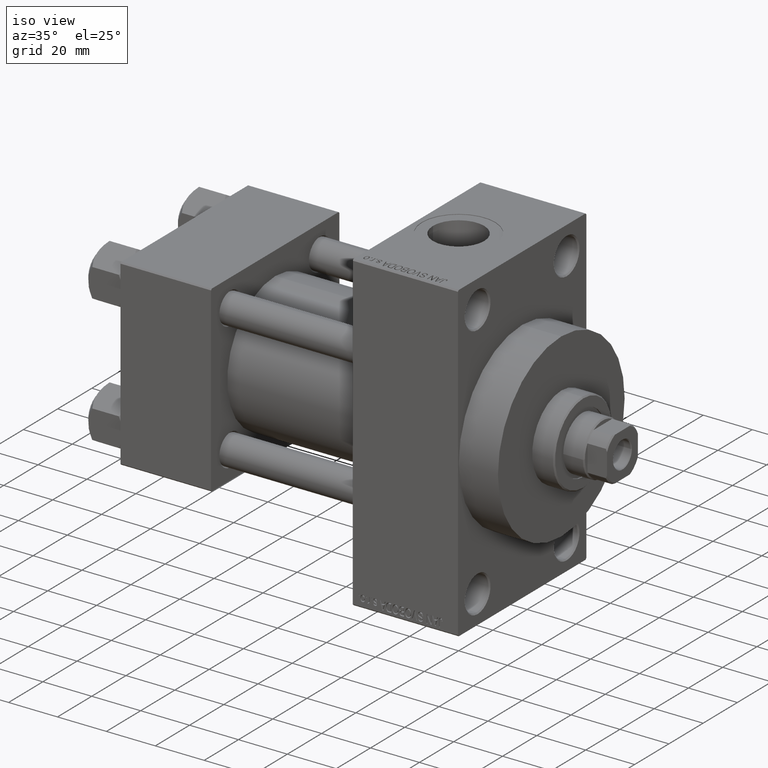
[diagram: clean part render]
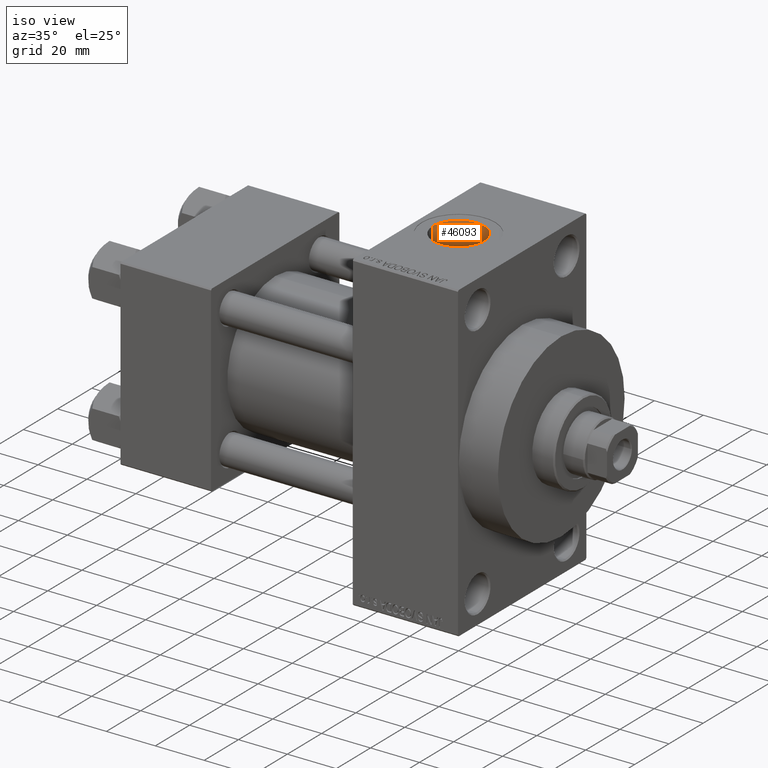
[diagram: same view with one face highlighted and labeled with its STEP entity id]
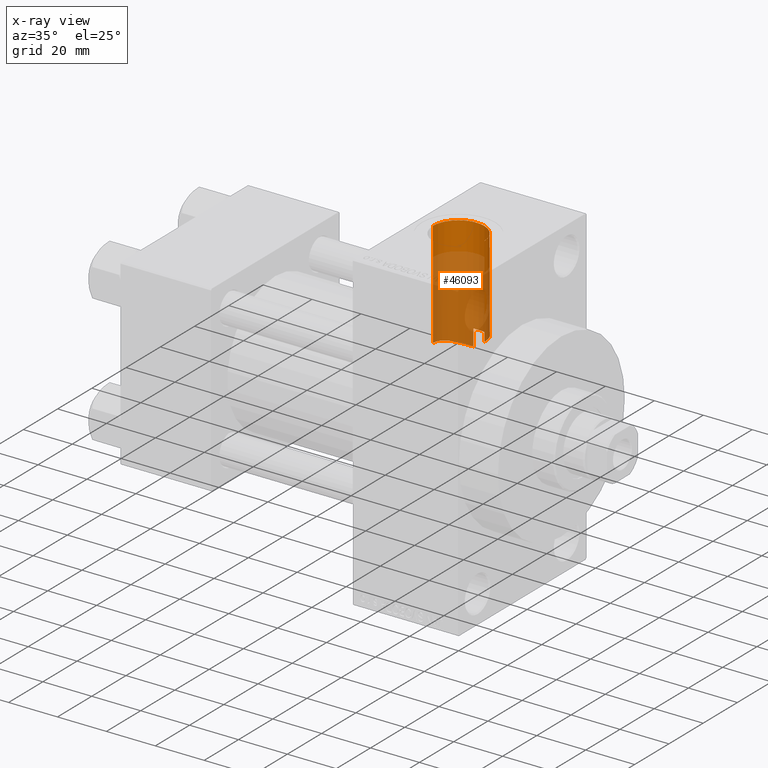
[diagram: x-ray of the same camera — body ghosted, the highlighted face saturated]
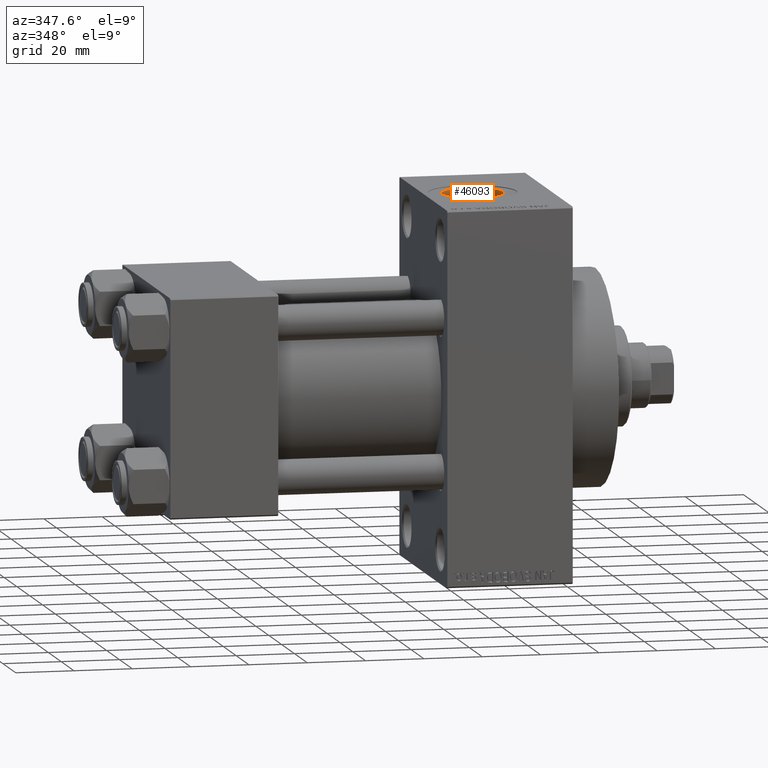
[diagram: same view with one face highlighted and labeled with its STEP entity id]
A machine part, iso view. The second image highlights one B-rep face of the part: STEP entity #46093.
The next image is the same camera in x-ray: the body ghosted, the highlighted face saturated — about 72% of this face is hidden behind the body in this view.
A second angle (auxiliary view) of the same face is appended — the face is thin or edge-on in the first view.
In plain terms, the highlighted cylindrical surface (edge-blend (fillet) strip) has radius 10.48 mm, axis along (0, 0, -1).
Its self-contained STEP definition (entity closure, byte-faithful):
#662 = CARTESIAN_POINT ( 'NONE',  ( 122.4800000000000040, -1.055894908382857498E-14, 86.79999999999995453 ) ) ;
#1130 = LINE ( 'NONE', #662, #12729 ) ;
#1571 = LINE ( 'NONE', #37376, #38355 ) ;
#1682 = CARTESIAN_POINT ( 'NONE',  ( 122.3203974186215106, 1.859062739166803757, 26.43718984002442340 ) ) ;
#2512 = EDGE_CURVE ( 'NONE', #10239, #34695, #34342, .T. ) ;
#2956 = CARTESIAN_POINT ( 'NONE',  ( 105.0528299167331312, 7.871036018965745562, 18.93334913321979585 ) ) ;
#3187 = CARTESIAN_POINT ( 'NONE',  ( 109.4692022797542137, 10.17493502766898494, 17.79682229850193664 ) ) ;
#4796 = CARTESIAN_POINT ( 'NONE',  ( 121.6992295974814340, 3.986558870987728209, 26.20065640115691608 ) ) ;
#4929 = AXIS2_PLACEMENT_3D ( 'NONE', #20710, #14016, #10668 ) ;
#5030 = CARTESIAN_POINT ( 'NONE',  ( 122.0669445693513495, 2.936601299046107449, 26.33916201839659621 ) ) ;
#5728 = CARTESIAN_POINT ( 'NONE',  ( 113.3395490093498239, 10.40067243543118636, 24.37370326712205326 ) ) ;
#6526 = CARTESIAN_POINT ( 'NONE',  ( 103.9742710306879445, 6.746563713616611224, 19.35963802281104762 ) ) ;
#6870 = ORIENTED_EDGE ( 'NONE', *, *, #31338, .F. ) ;
#7004 = EDGE_LOOP ( 'NONE', ( #7594, #6870, #15034, #15441, #11827, #21052 ) ) ;
#7247 = CARTESIAN_POINT ( 'NONE',  ( 101.5199999999999960, 2.510525899711658857E-15, 20.50000000000000000 ) ) ;
#7304 = EDGE_CURVE ( 'NONE', #37208, #37380, #1130, .T. ) ;
#7594 = ORIENTED_EDGE ( 'NONE', *, *, #7304, .F. ) ;
#8616 = CARTESIAN_POINT ( 'NONE',  ( 117.8214836787066560, 8.745726648652290436, 25.01826792439339897 ) ) ;
#9095 = CARTESIAN_POINT ( 'NONE',  ( 120.8701661937233069, 5.628741928601555422, 25.90236100434593780 ) ) ;
#9324 = CARTESIAN_POINT ( 'NONE',  ( 122.3797757294332484, 1.493268271475387765, 26.46049876817950164 ) ) ;
#10239 = VERTEX_POINT ( 'NONE', #25281 ) ;
#10331 = CARTESIAN_POINT ( 'NONE',  ( 107.6756880578672479, 9.566914324853396323, 18.13372263328941969 ) ) ;
#10580 = CARTESIAN_POINT ( 'NONE',  ( 103.7748447540609931, 6.501949221870917839, 19.44336272688398992 ) ) ;
#10668 = DIRECTION ( 'NONE',  ( 1.000000000000000000, 0.000000000000000000, 0.000000000000000000 ) ) ;
#11754 = CARTESIAN_POINT ( 'NONE',  ( 110.7400000000000375, 10.40398000767013365, 17.66372554134603234 ) ) ;
#11827 = ORIENTED_EDGE ( 'NONE', *, *, #23077, .F. ) ;
#12729 = VECTOR ( 'NONE', #19272, 1000.000000000000000 ) ;
#13327 = CIRCLE ( 'NONE', #4929, 10.48000000000000398 ) ;
#13920 = CARTESIAN_POINT ( 'NONE',  ( 106.0406083823525449, 8.626389767625555649, 18.59760954222976181 ) ) ;
#14016 = DIRECTION ( 'NONE',  ( -0.000000000000000000, -0.000000000000000000, -1.000000000000000000 ) ) ;
#15034 = ORIENTED_EDGE ( 'NONE', *, *, #26804, .T. ) ;
#15200 = DIRECTION ( 'NONE',  ( -1.000000000000000000, 0.000000000000000000, 0.000000000000000000 ) ) ;
#15405 = CARTESIAN_POINT ( 'NONE',  ( 122.4800000000000040, -1.055894908382857498E-14, 63.79999999999996874 ) ) ;
#15441 = ORIENTED_EDGE ( 'NONE', *, *, #2512, .T. ) ;
#16118 = DIRECTION ( 'NONE',  ( 0.000000000000000000, 0.000000000000000000, -1.000000000000000000 ) ) ;
#16234 = CARTESIAN_POINT ( 'NONE',  ( 114.4441749543285738, 10.19789382658400179, 24.45934298840090193 ) ) ;
#16576 = DIRECTION ( 'NONE',  ( 0.000000000000000000, 0.000000000000000000, -1.000000000000000000 ) ) ;
#16803 = LINE ( 'NONE', #35177, #34501 ) ;
#17730 = CARTESIAN_POINT ( 'NONE',  ( 101.8172526941615104, 2.560154069184302994, 20.34938652026761119 ) ) ;
#18062 = CYLINDRICAL_SURFACE ( 'NONE', #42455, 10.48000000000000398 ) ;
#19272 = DIRECTION ( 'NONE',  ( 0.000000000000000000, 0.000000000000000000, -1.000000000000000000 ) ) ;
#19590 = CARTESIAN_POINT ( 'NONE',  ( 122.4596852673074494, 0.7513843442591080501, 26.49194720587043506 ) ) ;
#19828 = CARTESIAN_POINT ( 'NONE',  ( 112.2299651273087733, 10.50378173186091857, 24.32953270370887466 ) ) ;
#20284 = CARTESIAN_POINT ( 'NONE',  ( 113.7090337631726413, 10.34650826617284558, 24.39684948145013621 ) ) ;
#20710 = CARTESIAN_POINT ( 'NONE',  ( 112.0000000000000000, -1.184237892933500047E-14, 63.79999999999996874 ) ) ;
#20840 = CARTESIAN_POINT ( 'NONE',  ( 102.7465031261292978, 4.929846979882105629, 19.90053945554344139 ) ) ;
#21052 = ORIENTED_EDGE ( 'NONE', *, *, #26143, .T. ) ;
#21081 = CARTESIAN_POINT ( 'NONE',  ( 104.5999354725380783, 7.447256858224746701, 19.10589413119057767 ) ) ;
#21566 = CARTESIAN_POINT ( 'NONE',  ( 102.8986382944031988, 5.205176082402801718, 19.83010537438763521 ) ) ;
#23067 = VERTEX_POINT ( 'NONE', #31823 ) ;
#23077 = EDGE_CURVE ( 'NONE', #27864, #34695, #16803, .T. ) ;
#23857 = CARTESIAN_POINT ( 'NONE',  ( 110.7400000000000375, 10.40398000767013365, 24.37226292324945831 ) ) ;
#24889 = CARTESIAN_POINT ( 'NONE',  ( 108.2549261276042216, 9.808449044963712282, 18.00254357143011319 ) ) ;
#25133 = CARTESIAN_POINT ( 'NONE',  ( 105.7867860278862366, 8.445286684367433239, 18.68076181990201334 ) ) ;
#25215 = CARTESIAN_POINT ( 'NONE',  ( 112.0000000000000000, -1.184237892933500047E-14, 86.79999999999995453 ) ) ;
#25281 = CARTESIAN_POINT ( 'NONE',  ( 101.5199999999999960, 2.510525899711658857E-15, 20.50000000000000000 ) ) ;
#25925 = DIRECTION ( 'NONE',  ( 0.000000000000000000, 0.000000000000000000, -1.000000000000000000 ) ) ;
#26143 = EDGE_CURVE ( 'NONE', #27864, #37380, #41083, .T. ) ;
#26804 = EDGE_CURVE ( 'NONE', #23067, #10239, #1571, .T. ) ;
#26974 = CARTESIAN_POINT ( 'NONE',  ( 121.2405592406192341, 4.999168989607013280, 26.03318073817900213 ) ) ;
#27864 = VERTEX_POINT ( 'NONE', #39451 ) ;
#28010 = CARTESIAN_POINT ( 'NONE',  ( 101.5808659713658244, 1.297835754585097590, 20.46869666010345767 ) ) ;
#28484 = CARTESIAN_POINT ( 'NONE',  ( 106.5676313420410679, 8.967626198694219397, 18.43549189657611009 ) ) ;
#29216 = CARTESIAN_POINT ( 'NONE',  ( 122.4800000000001603, 1.369086318735094867E-14, 26.50000000000006750 ) ) ;
#30565 = CARTESIAN_POINT ( 'NONE',  ( 122.4800000000000040, 0.3734547879239727419, 26.49999999999999645 ) ) ;
#31266 = CARTESIAN_POINT ( 'NONE',  ( 119.5039792871088196, 7.352021432312235483, 25.46477158686608533 ) ) ;
#31338 = EDGE_CURVE ( 'NONE', #23067, #37208, #13327, .T. ) ;
#31819 = CARTESIAN_POINT ( 'NONE',  ( 102.3367565711945701, 4.068703859687935243, 20.09447083081811769 ) ) ;
#31823 = CARTESIAN_POINT ( 'NONE',  ( 101.5199999999999960, -1.184237892933500047E-14, 63.79999999999996874 ) ) ;
#32293 = CARTESIAN_POINT ( 'NONE',  ( 110.0991158311732221, 10.31120164165120023, 17.71821964665046778 ) ) ;
#33333 = FACE_OUTER_BOUND ( 'NONE', #7004, .T. ) ;
#34342 = B_SPLINE_CURVE_WITH_KNOTS ( 'NONE', 3,
 ( #7247, #35881, #28010, #17730, #42573, #31819, #36114, #20840, #21566, #39224, #43288, #10580, #6526, #21081, #2956, #25133, #13920, #28484, #39712, #10331, #24889, #39471, #3187, #32293, #46856, #11754 ),
 .UNSPECIFIED., .F., .F.,
 ( 4, 2, 2, 2, 2, 2, 2, 2, 2, 2, 2, 2, 4 ),
 ( 0.03336594956818871721, 0.03529115265112772043, 0.03721635573406671671, 0.03817895727553621138, 0.03914155881700570605, 0.04010416035847520072, 0.04106676189994469539, 0.04299196498288371249, 0.04395456652435320716, 0.04491716806582270183, 0.04684237114876168423, 0.04780497269023117890, 0.04876757423170067357 ),
 .UNSPECIFIED. ) ;
#34374 = CARTESIAN_POINT ( 'NONE',  ( 120.0047687462550954, 6.803400717438811363, 25.61891449644601337 ) ) ;
#34501 = VECTOR ( 'NONE', #16576, 1000.000000000000000 ) ;
#34695 = VERTEX_POINT ( 'NONE', #45835 ) ;
#34844 = CARTESIAN_POINT ( 'NONE',  ( 114.8037318579564072, 10.10473920047652996, 24.49813564323964954 ) ) ;
#35177 = CARTESIAN_POINT ( 'NONE',  ( 110.7400000000000375, 10.40398000767013365, 86.79999999999995453 ) ) ;
#35881 = CARTESIAN_POINT ( 'NONE',  ( 101.5199999999999960, 0.6432653997690287451, 20.50000000000000000 ) ) ;
#36114 = CARTESIAN_POINT ( 'NONE',  ( 102.4658413712517557, 4.362386374640967013, 20.03258463067211892 ) ) ;
#37208 = VERTEX_POINT ( 'NONE', #15405 ) ;
#37376 = CARTESIAN_POINT ( 'NONE',  ( 101.5199999999999960, -1.184237892933500047E-14, 86.79999999999995453 ) ) ;
#37380 = VERTEX_POINT ( 'NONE', #29216 ) ;
#38200 = CARTESIAN_POINT ( 'NONE',  ( 122.4800000000001603, 1.369086318735094867E-14, 26.50000000000006750 ) ) ;
#38355 = VECTOR ( 'NONE', #16118, 1000.000000000000000 ) ;
#39224 = CARTESIAN_POINT ( 'NONE',  ( 103.2259820339099576, 5.739795438484815548, 19.68201426512246499 ) ) ;
#39451 = CARTESIAN_POINT ( 'NONE',  ( 110.7400000000000375, 10.40398000767013365, 24.37226292324945831 ) ) ;
#39471 = CARTESIAN_POINT ( 'NONE',  ( 109.1609584177873273, 10.09308949919720533, 17.84352421155690394 ) ) ;
#39712 = CARTESIAN_POINT ( 'NONE',  ( 106.8412927899010612, 9.127810295380946570, 18.35647067852579184 ) ) ;
#41083 = B_SPLINE_CURVE_WITH_KNOTS ( 'NONE', 3,
 ( #23857, #41314, #19828, #5728, #20284, #16234, #34844, #41543, #42019, #8616, #41784, #31266, #34374, #9095, #26974, #4796, #45354, #5030, #45596, #1682, #9324, #19590, #30565, #38200 ),
 .UNSPECIFIED., .F., .F.,
 ( 4, 2, 2, 2, 2, 2, 2, 2, 2, 2, 2, 4 ),
 ( 0.000000000000000000, 0.002226462588988903889, 0.003339693883483335016, 0.004452925177977766144, 0.006679387766966586766, 0.008905850355955407388, 0.01113231294494422714, 0.01335877553393304516, 0.01447200682842746632, 0.01558523812292188573, 0.01669846941741630689, 0.01781170071191072457 ),
 .UNSPECIFIED. ) ;
#41314 = CARTESIAN_POINT ( 'NONE',  ( 111.4867779838282615, 10.49442042171647493, 24.33365591073748035 ) ) ;
#41543 = CARTESIAN_POINT ( 'NONE',  ( 115.8597611319121512, 9.771269649766484378, 24.63391780956525778 ) ) ;
#41784 = CARTESIAN_POINT ( 'NONE',  ( 118.4137155183433237, 8.320227012065174677, 25.16506772452921936 ) ) ;
#42019 = CARTESIAN_POINT ( 'NONE',  ( 116.5354866893690655, 9.476643251961673897, 24.75065044043747164 ) ) ;
#42455 = AXIS2_PLACEMENT_3D ( 'NONE', #25215, #25925, #15200 ) ;
#42573 = CARTESIAN_POINT ( 'NONE',  ( 101.9916734818969957, 3.173751558613250090, 20.26192827245122885 ) ) ;
#43288 = CARTESIAN_POINT ( 'NONE',  ( 103.4011913467666233, 5.999084284177357951, 19.60435374003196785 ) ) ;
#45354 = CARTESIAN_POINT ( 'NONE',  ( 121.8350634734960209, 3.638478613961682040, 26.25141056013274010 ) ) ;
#45596 = CARTESIAN_POINT ( 'NONE',  ( 122.1639830582153223, 2.580729652396743568, 26.37652280659619919 ) ) ;
#45835 = CARTESIAN_POINT ( 'NONE',  ( 110.7400000000000375, 10.40398000767013365, 17.66372554134603234 ) ) ;
#46093 = ADVANCED_FACE ( 'NONE', ( #33333 ), #18062, .F. ) ;
#46856 = CARTESIAN_POINT ( 'NONE',  ( 110.4203714346557348, 10.36527059146240148, 17.68652548756300291 ) ) ;